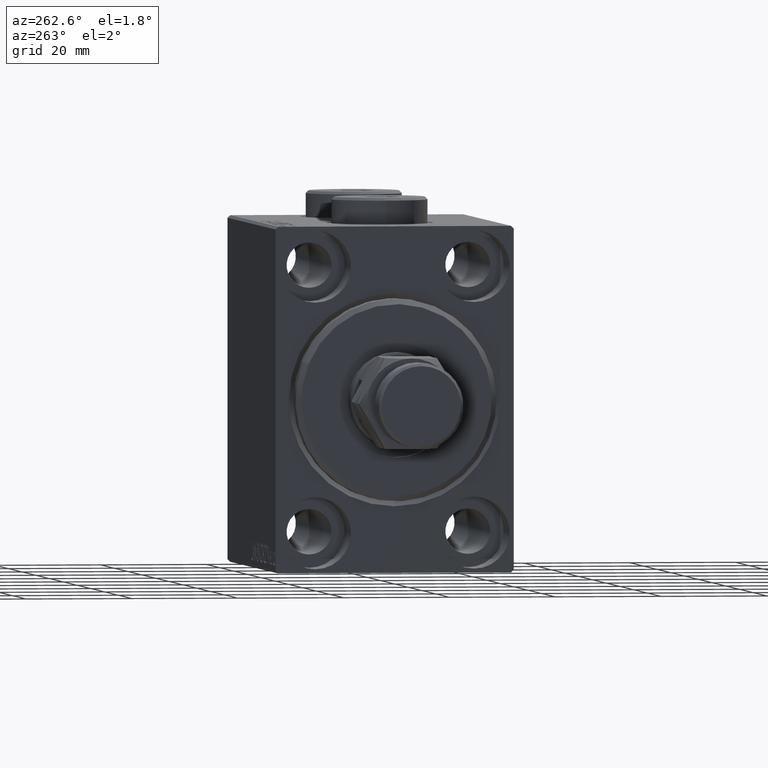
[diagram: clean part render]
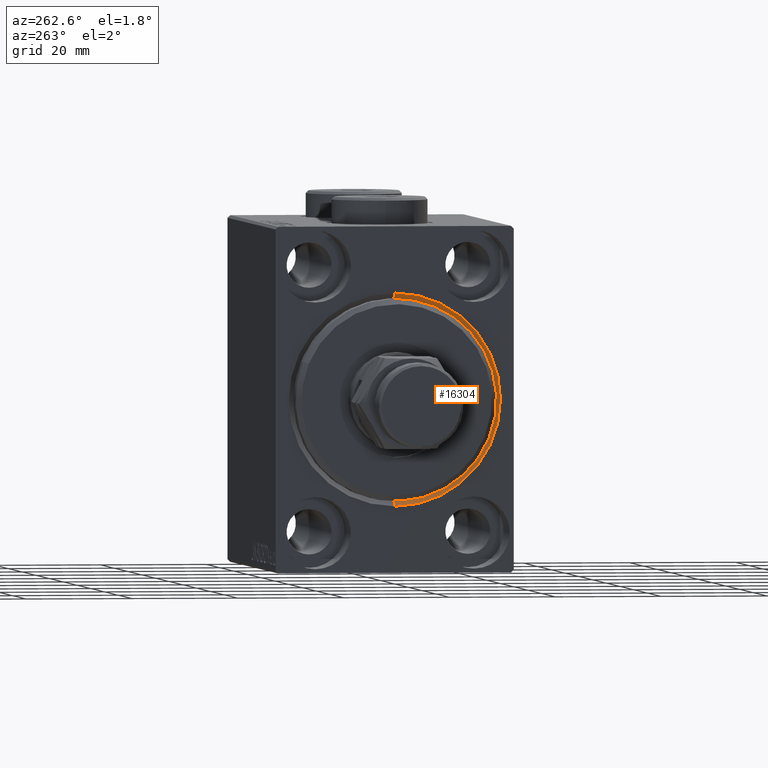
[diagram: same view with one face highlighted and labeled with its STEP entity id]
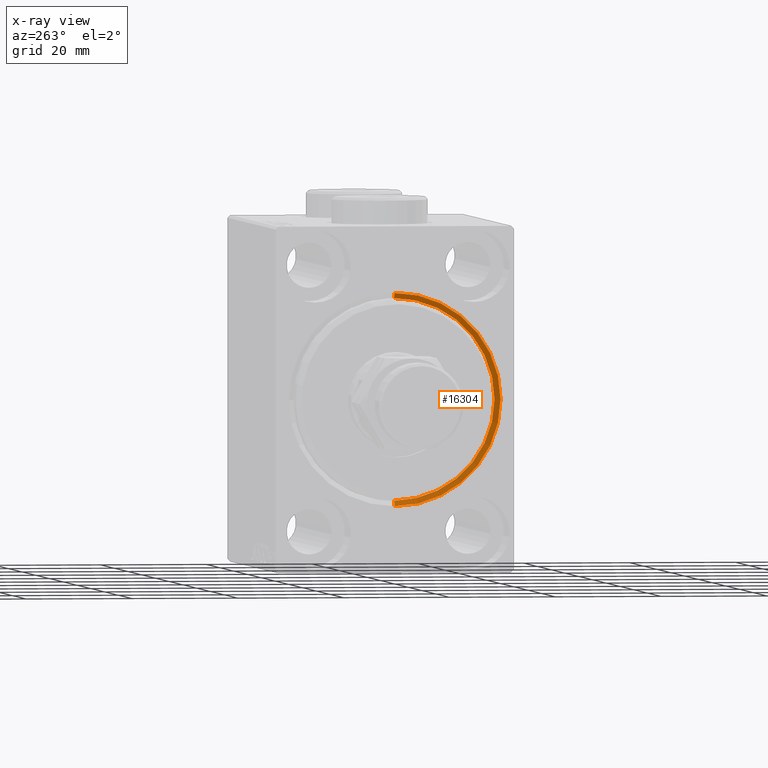
[diagram: x-ray of the same camera — body ghosted, the highlighted face saturated]
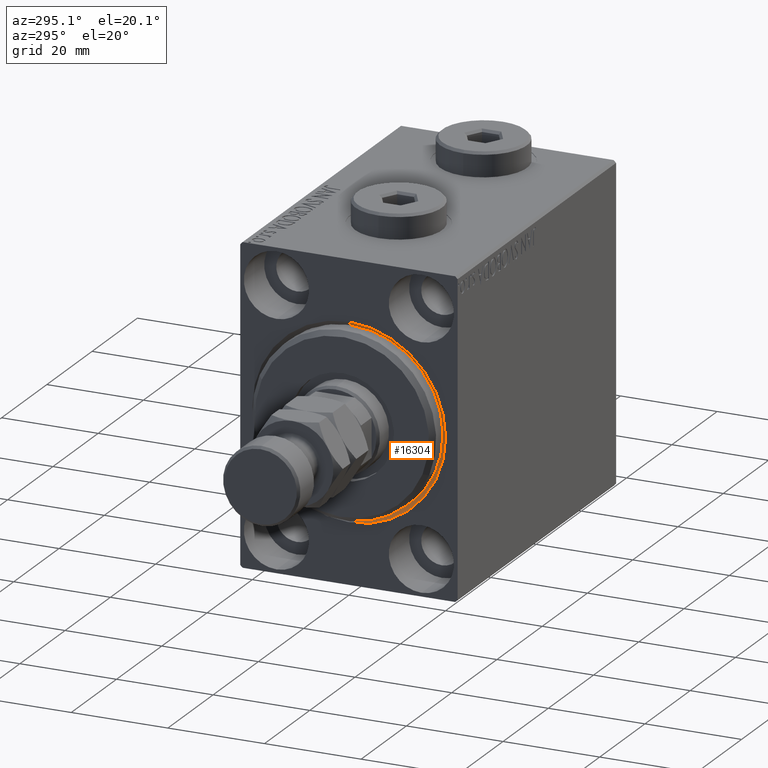
[diagram: same view with one face highlighted and labeled with its STEP entity id]
A machine part, auxiliary view. The second image highlights one B-rep face of the part: STEP entity #16304.
The next image is the same camera in x-ray: the body ghosted, the highlighted face saturated — about 0% of this face is hidden behind the body in this view.
A second angle (auxiliary view) of the same face is appended — the face is thin or edge-on in the first view.
In plain terms, the highlighted conical surface has half-angle 45 deg.
Its self-contained STEP definition (entity closure, byte-faithful):
#90 = EDGE_CURVE ( 'NONE', #34455, #23946, #3509, .T. ) ;
#3250 = DIRECTION ( 'NONE',  ( -0.7071067811865463515, 8.659560562354948882E-17, -0.7071067811865487940 ) ) ;
#3490 = LINE ( 'NONE', #36192, #6476 ) ;
#3509 = CIRCLE ( 'NONE', #31414, 19.00000000000000000 ) ;
#3803 = VERTEX_POINT ( 'NONE', #21438 ) ;
#4189 = DIRECTION ( 'NONE',  ( -1.000000000000000000, 0.000000000000000000, 0.000000000000000000 ) ) ;
#4505 = ORIENTED_EDGE ( 'NONE', *, *, #12020, .F. ) ;
#6199 = DIRECTION ( 'NONE',  ( -0.7071067811865463515, 0.000000000000000000, 0.7071067811865487940 ) ) ;
#6293 = EDGE_CURVE ( 'NONE', #23946, #3803, #9526, .T. ) ;
#6476 = VECTOR ( 'NONE', #3250, 1000.000000000000000 ) ;
#9276 = CONICAL_SURFACE ( 'NONE', #35738, 19.00000000000000000, 0.7853981633974500554 ) ;
#9526 = LINE ( 'NONE', #23971, #22735 ) ;
#10133 = DIRECTION ( 'NONE',  ( -1.000000000000000000, 0.000000000000000000, 0.000000000000000000 ) ) ;
#12020 = EDGE_CURVE ( 'NONE', #3803, #18787, #28081, .T. ) ;
#12071 = CARTESIAN_POINT ( 'NONE',  ( 1.000000000000000888, 2.326828918379970970E-15, -19.00000000000000000 ) ) ;
#13227 = FACE_OUTER_BOUND ( 'NONE', #30516, .T. ) ;
#16017 = CARTESIAN_POINT ( 'NONE',  ( 0.000000000000000000, 2.449293598294706907E-15, -20.00000000000000355 ) ) ;
#16304 = ADVANCED_FACE ( 'NONE', ( #13227 ), #9276, .F. ) ;
#16411 = ORIENTED_EDGE ( 'NONE', *, *, #6293, .F. ) ;
#18228 = AXIS2_PLACEMENT_3D ( 'NONE', #29294, #33324, #22180 ) ;
#18787 = VERTEX_POINT ( 'NONE', #16017 ) ;
#21257 = CARTESIAN_POINT ( 'NONE',  ( 1.000000000000000888, 0.000000000000000000, 0.000000000000000000 ) ) ;
#21438 = CARTESIAN_POINT ( 'NONE',  ( 0.000000000000000000, 0.000000000000000000, 20.00000000000000355 ) ) ;
#22180 = DIRECTION ( 'NONE',  ( 0.000000000000000000, 0.000000000000000000, -1.000000000000000000 ) ) ;
#22735 = VECTOR ( 'NONE', #6199, 1000.000000000000000 ) ;
#23946 = VERTEX_POINT ( 'NONE', #36007 ) ;
#23971 = CARTESIAN_POINT ( 'NONE',  ( 1.000000000000000888, 0.000000000000000000, 19.00000000000000000 ) ) ;
#27983 = ORIENTED_EDGE ( 'NONE', *, *, #39138, .T. ) ;
#28081 = CIRCLE ( 'NONE', #18228, 20.00000000000000355 ) ;
#29294 = CARTESIAN_POINT ( 'NONE',  ( 0.000000000000000000, 0.000000000000000000, 0.000000000000000000 ) ) ;
#30516 = EDGE_LOOP ( 'NONE', ( #43825, #27983, #4505, #16411 ) ) ;
#31414 = AXIS2_PLACEMENT_3D ( 'NONE', #36657, #4189, #43285 ) ;
#33324 = DIRECTION ( 'NONE',  ( 1.000000000000000000, 0.000000000000000000, 0.000000000000000000 ) ) ;
#34455 = VERTEX_POINT ( 'NONE', #12071 ) ;
#34784 = DIRECTION ( 'NONE',  ( 0.000000000000000000, 0.000000000000000000, 1.000000000000000000 ) ) ;
#35738 = AXIS2_PLACEMENT_3D ( 'NONE', #21257, #10133, #34784 ) ;
#36007 = CARTESIAN_POINT ( 'NONE',  ( 1.000000000000000888, 0.000000000000000000, 19.00000000000000000 ) ) ;
#36192 = CARTESIAN_POINT ( 'NONE',  ( 1.000000000000000888, 2.326828918379970970E-15, -19.00000000000000000 ) ) ;
#36657 = CARTESIAN_POINT ( 'NONE',  ( 1.000000000000000888, 0.000000000000000000, 0.000000000000000000 ) ) ;
#39138 = EDGE_CURVE ( 'NONE', #34455, #18787, #3490, .T. ) ;
#43285 = DIRECTION ( 'NONE',  ( 0.000000000000000000, 0.000000000000000000, -1.000000000000000000 ) ) ;
#43825 = ORIENTED_EDGE ( 'NONE', *, *, #90, .F. ) ;